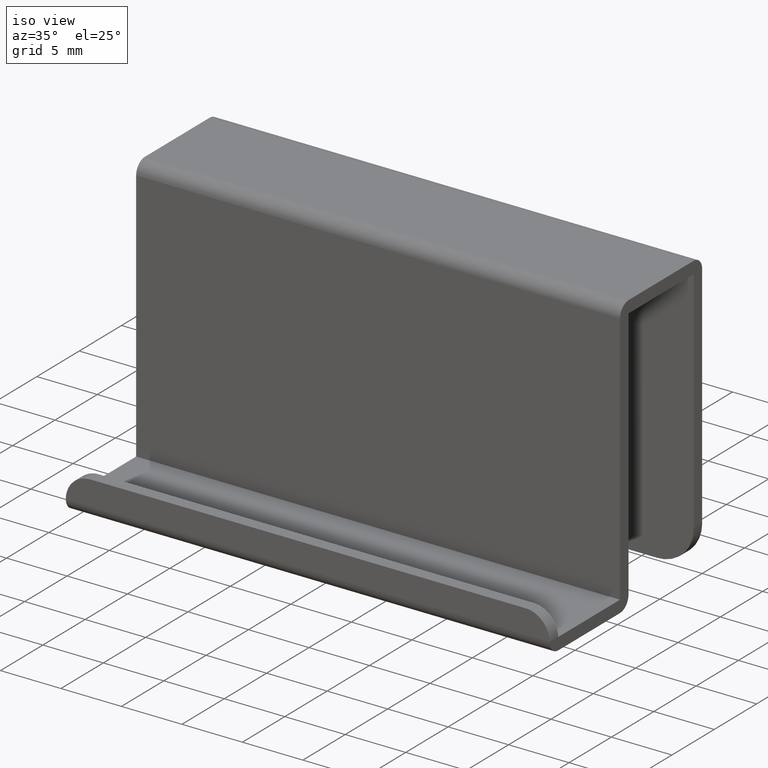
[diagram: clean part render]
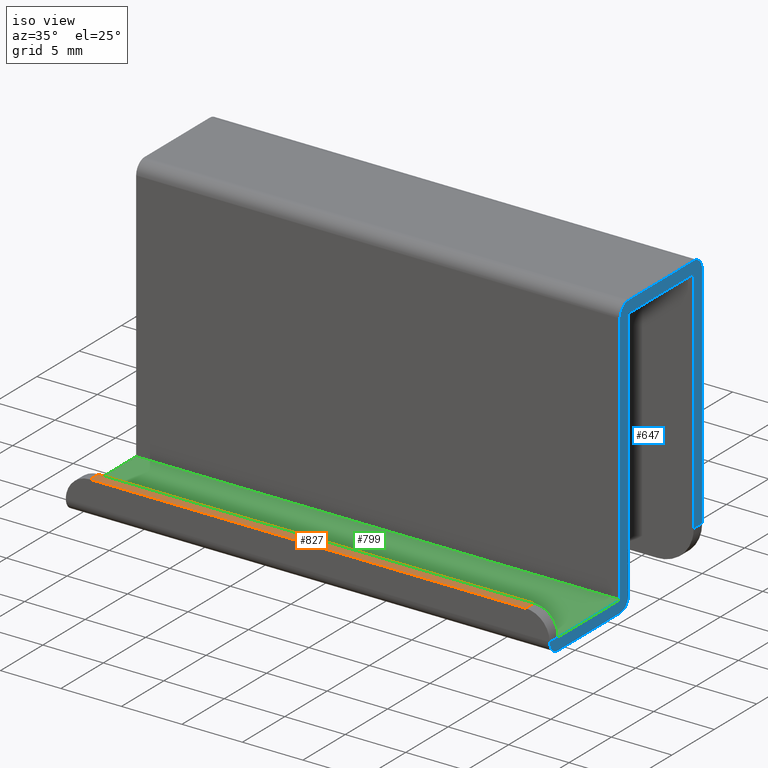
[diagram: same view with three faces highlighted in distinct colors, each labeled with its STEP entity id]
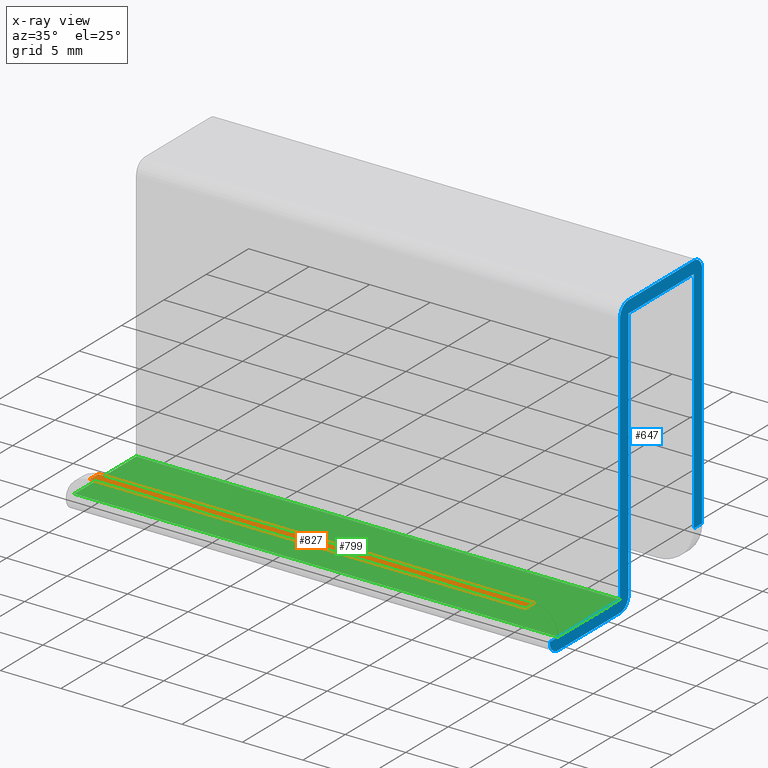
[diagram: x-ray of the same camera — body ghosted, the three highlighted faces saturated]
A machine part, iso view with three faces highlighted in distinct colors.
The next image is the same camera in x-ray (body ghosted, the three faces saturated) — at least one of them is partly hidden behind the body in this view.
Their STEP definitions:

[orange] entity #827 — the highlighted face is a freeform B-spline surface patch.
#60=CARTESIAN_POINT('',(18.0,-17.999999999999751,3.0));
#61=VERTEX_POINT('',#60);
#82=CARTESIAN_POINT('',(18.0,-16.999999999999751,3.0));
#83=VERTEX_POINT('',#82);
#97=CARTESIAN_POINT('',(18.0,-17.999999999999751,3.0));
#98=CARTESIAN_POINT('',(18.0,-16.999999999999751,3.0));
#99=QUASI_UNIFORM_CURVE('',1,(#97,#98),.UNSPECIFIED.,.F.,.U.);
#100=EDGE_CURVE('',#61,#83,#99,.T.);
#119=CARTESIAN_POINT('',(-18.0,-17.999999999999751,3.0));
#120=VERTEX_POINT('',#119);
#136=CARTESIAN_POINT('',(-18.0,-16.999999999999751,3.0));
#137=VERTEX_POINT('',#136);
#138=CARTESIAN_POINT('',(-18.0,-16.999999999999751,3.0));
#139=CARTESIAN_POINT('',(-18.0,-17.999999999999751,3.0));
#140=QUASI_UNIFORM_CURVE('',1,(#138,#139),.UNSPECIFIED.,.F.,.U.);
#141=EDGE_CURVE('',#137,#120,#140,.T.);
#653=CARTESIAN_POINT('',(18.0,-17.999999999999751,3.0));
#654=CARTESIAN_POINT('',(-18.0,-17.999999999999751,3.0));
#655=QUASI_UNIFORM_CURVE('',1,(#653,#654),.UNSPECIFIED.,.F.,.U.);
#656=EDGE_CURVE('',#61,#120,#655,.T.);
#807=CARTESIAN_POINT('',(18.0,-16.999999999999751,3.0));
#808=CARTESIAN_POINT('',(-18.0,-16.999999999999751,3.0));
#809=QUASI_UNIFORM_CURVE('',1,(#807,#808),.UNSPECIFIED.,.F.,.U.);
#810=EDGE_CURVE('',#83,#137,#809,.T.);
#816=CARTESIAN_POINT('',(-19.798199930225010,-18.049949998061560,3.0));
#817=CARTESIAN_POINT('',(19.798200895820258,-18.049949998061560,3.0));
#818=CARTESIAN_POINT('',(-19.798199930225010,-16.950049975115849,3.0));
#819=CARTESIAN_POINT('',(19.798200895820258,-16.950049975115849,3.0));
#820=B_SPLINE_SURFACE_WITH_KNOTS('',1,1,((#816,#818),(#817,#819)),.UNSPECIFIED.,.F.,.F.,.U.,(2,2),(2,2),(0.0,39.596400826045269),(0.041708334948495,0.958291687403247),.UNSPECIFIED.);
#821=ORIENTED_EDGE('',*,*,#810,.T.);
#822=ORIENTED_EDGE('',*,*,#141,.T.);
#823=ORIENTED_EDGE('',*,*,#656,.F.);
#824=ORIENTED_EDGE('',*,*,#100,.T.);
#825=EDGE_LOOP('',(#821,#822,#823,#824));
#826=FACE_OUTER_BOUND('',#825,.T.);
#827=ADVANCED_FACE('',(#826),#820,.T.);

[blue] entity #647 — the highlighted face is a freeform B-spline surface patch.
#58=CARTESIAN_POINT('',(20.0,-17.999999999999751,1.0));
#59=VERTEX_POINT('',#58);
#75=CARTESIAN_POINT('',(20.0,-16.999999999999751,1.0));
#76=VERTEX_POINT('',#75);
#77=CARTESIAN_POINT('',(20.0,-16.999999999999751,1.0));
#78=CARTESIAN_POINT('',(20.0,-17.999999999999751,1.0));
#79=QUASI_UNIFORM_CURVE('',1,(#77,#78),.UNSPECIFIED.,.F.,.U.);
#80=EDGE_CURVE('',#76,#59,#79,.T.);
#180=CARTESIAN_POINT('',(20.0,0.0,22.0));
#181=VERTEX_POINT('',#180);
#182=CARTESIAN_POINT('',(20.0,-1.0,23.0));
#183=VERTEX_POINT('',#182);
#184=CARTESIAN_POINT('',(20.0,0.0,22.0));
#185=CARTESIAN_POINT('',(19.999999999999996,0.0,22.999999999999993));
#186=CARTESIAN_POINT('',(20.0,-1.0,23.0));
#194=(BOUNDED_CURVE()B_SPLINE_CURVE(2,(#184,#185,#186),.UNSPECIFIED.,.F.,.U.)CURVE()GEOMETRIC_REPRESENTATION_ITEM()QUASI_UNIFORM_CURVE()RATIONAL_B_SPLINE_CURVE((1.0,0.707106781186548,1.0))REPRESENTATION_ITEM(''));
#195=EDGE_CURVE('',#181,#183,#194,.T.);
#241=CARTESIAN_POINT('',(20.0,-8.700011999999788,23.0));
#242=VERTEX_POINT('',#241);
#243=CARTESIAN_POINT('',(20.0,-9.700011999999790,22.0));
#244=VERTEX_POINT('',#243);
#245=CARTESIAN_POINT('',(20.0,-8.700011999999788,23.0));
#246=CARTESIAN_POINT('',(19.999999999999996,-9.700011999999790,22.999999999999993));
#247=CARTESIAN_POINT('',(20.0,-9.700011999999790,22.0));
#255=(BOUNDED_CURVE()B_SPLINE_CURVE(2,(#245,#246,#247),.UNSPECIFIED.,.F.,.U.)CURVE()GEOMETRIC_REPRESENTATION_ITEM()QUASI_UNIFORM_CURVE()RATIONAL_B_SPLINE_CURVE((1.0,0.707106781186548,1.0))REPRESENTATION_ITEM(''));
#256=EDGE_CURVE('',#242,#244,#255,.T.);
#302=CARTESIAN_POINT('',(20.0,-16.999999999999751,0.0));
#303=VERTEX_POINT('',#302);
#304=CARTESIAN_POINT('',(20.0,-17.999999999999751,1.0));
#305=CARTESIAN_POINT('',(19.999999999999996,-17.999999999999751,0.0));
#306=CARTESIAN_POINT('',(20.0,-16.999999999999751,0.0));
#314=(BOUNDED_CURVE()B_SPLINE_CURVE(2,(#304,#305,#306),.UNSPECIFIED.,.F.,.U.)CURVE()GEOMETRIC_REPRESENTATION_ITEM()QUASI_UNIFORM_CURVE()RATIONAL_B_SPLINE_CURVE((1.0,0.707106781186548,1.0))REPRESENTATION_ITEM(''));
#315=EDGE_CURVE('',#59,#303,#314,.T.);
#359=CARTESIAN_POINT('',(20.0,-9.700011999999999,0.0));
#360=VERTEX_POINT('',#359);
#361=CARTESIAN_POINT('',(20.0,-8.700011999999999,1.0));
#362=VERTEX_POINT('',#361);
#363=CARTESIAN_POINT('',(20.0,-9.700011999999999,0.0));
#364=CARTESIAN_POINT('',(19.999999999999996,-8.700011999999999,0.0));
#365=CARTESIAN_POINT('',(20.0,-8.700011999999999,1.0));
#373=(BOUNDED_CURVE()B_SPLINE_CURVE(2,(#363,#364,#365),.UNSPECIFIED.,.F.,.U.)CURVE()GEOMETRIC_REPRESENTATION_ITEM()QUASI_UNIFORM_CURVE()RATIONAL_B_SPLINE_CURVE((1.0,0.707106781186548,1.0))REPRESENTATION_ITEM(''));
#374=EDGE_CURVE('',#360,#362,#373,.T.);
#420=CARTESIAN_POINT('',(20.0,0.0,3.0));
#421=VERTEX_POINT('',#420);
#437=CARTESIAN_POINT('',(20.0,-1.0,3.0));
#438=VERTEX_POINT('',#437);
#439=CARTESIAN_POINT('',(20.0,-1.0,3.0));
#440=CARTESIAN_POINT('',(20.0,0.0,3.0));
#441=QUASI_UNIFORM_CURVE('',1,(#439,#440),.UNSPECIFIED.,.F.,.U.);
#442=EDGE_CURVE('',#438,#421,#441,.T.);
#588=CARTESIAN_POINT('',(20.0,-18.899099965112249,24.148849955421539));
#589=CARTESIAN_POINT('',(20.0,0.899100447910116,24.148849955421539));
#590=CARTESIAN_POINT('',(20.0,-18.899099965112249,-1.148850572329609));
#591=CARTESIAN_POINT('',(20.0,0.899100447910116,-1.148850572329609));
#592=B_SPLINE_SURFACE_WITH_KNOTS('',1,1,((#588,#590),(#589,#591)),.UNSPECIFIED.,.F.,.F.,.U.,(2,2),(2,2),(0.0,19.798200413022361),(0.0,25.297700527751150),.UNSPECIFIED.);
#593=CARTESIAN_POINT('',(20.0,-9.700011999999790,1.0));
#594=VERTEX_POINT('',#593);
#595=CARTESIAN_POINT('',(20.0,-16.999999999999751,1.0));
#596=CARTESIAN_POINT('',(20.0,-9.700011999999790,1.0));
#597=QUASI_UNIFORM_CURVE('',1,(#595,#596),.UNSPECIFIED.,.F.,.U.);
#598=EDGE_CURVE('',#76,#594,#597,.T.);
#599=ORIENTED_EDGE('',*,*,#598,.F.);
#600=ORIENTED_EDGE('',*,*,#80,.T.);
#601=ORIENTED_EDGE('',*,*,#315,.T.);
#602=CARTESIAN_POINT('',(20.0,-9.700011999999999,0.0));
#603=CARTESIAN_POINT('',(20.0,-16.999999999999751,0.0));
#604=QUASI_UNIFORM_CURVE('',1,(#602,#603),.UNSPECIFIED.,.F.,.U.);
#605=EDGE_CURVE('',#360,#303,#604,.T.);
#606=ORIENTED_EDGE('',*,*,#605,.F.);
#607=ORIENTED_EDGE('',*,*,#374,.T.);
#608=CARTESIAN_POINT('',(20.0,-8.700011999999999,22.0));
#609=VERTEX_POINT('',#608);
#610=CARTESIAN_POINT('',(20.0,-8.700011999999999,22.0));
#611=CARTESIAN_POINT('',(20.0,-8.700011999999999,1.0));
#612=QUASI_UNIFORM_CURVE('',1,(#610,#611),.UNSPECIFIED.,.F.,.U.);
#613=EDGE_CURVE('',#609,#362,#612,.T.);
#614=ORIENTED_EDGE('',*,*,#613,.F.);
#615=CARTESIAN_POINT('',(20.0,-1.0,22.0));
#616=VERTEX_POINT('',#615);
#617=CARTESIAN_POINT('',(20.0,-1.0,22.0));
#618=CARTESIAN_POINT('',(20.0,-8.700011999999999,22.0));
#619=QUASI_UNIFORM_CURVE('',1,(#617,#618),.UNSPECIFIED.,.F.,.U.);
#620=EDGE_CURVE('',#616,#609,#619,.T.);
#621=ORIENTED_EDGE('',*,*,#620,.F.);
#622=CARTESIAN_POINT('',(20.0,-1.0,3.0));
#623=CARTESIAN_POINT('',(20.0,-1.0,22.0));
#624=QUASI_UNIFORM_CURVE('',1,(#622,#623),.UNSPECIFIED.,.F.,.U.);
#625=EDGE_CURVE('',#438,#616,#624,.T.);
#626=ORIENTED_EDGE('',*,*,#625,.F.);
#627=ORIENTED_EDGE('',*,*,#442,.T.);
#628=CARTESIAN_POINT('',(20.0,0.0,22.0));
#629=CARTESIAN_POINT('',(20.0,0.0,3.0));
#630=QUASI_UNIFORM_CURVE('',1,(#628,#629),.UNSPECIFIED.,.F.,.U.);
#631=EDGE_CURVE('',#181,#421,#630,.T.);
#632=ORIENTED_EDGE('',*,*,#631,.F.);
#633=ORIENTED_EDGE('',*,*,#195,.T.);
#634=CARTESIAN_POINT('',(20.0,-8.700011999999788,23.0));
#635=CARTESIAN_POINT('',(20.0,-1.0,23.0));
#636=QUASI_UNIFORM_CURVE('',1,(#634,#635),.UNSPECIFIED.,.F.,.U.);
#637=EDGE_CURVE('',#242,#183,#636,.T.);
#638=ORIENTED_EDGE('',*,*,#637,.F.);
#639=ORIENTED_EDGE('',*,*,#256,.T.);
#640=CARTESIAN_POINT('',(20.0,-9.700011999999790,1.0));
#641=CARTESIAN_POINT('',(20.0,-9.700011999999790,22.0));
#642=QUASI_UNIFORM_CURVE('',1,(#640,#641),.UNSPECIFIED.,.F.,.U.);
#643=EDGE_CURVE('',#594,#244,#642,.T.);
#644=ORIENTED_EDGE('',*,*,#643,.F.);
#645=EDGE_LOOP('',(#599,#600,#601,#606,#607,#614,#621,#626,#627,#632,#633,#638,#639,#644));
#646=FACE_OUTER_BOUND('',#645,.T.);
#647=ADVANCED_FACE('',(#646),#592,.F.);

[green] entity #799 — the highlighted face is a freeform B-spline surface patch.
#75=CARTESIAN_POINT('',(20.0,-16.999999999999751,1.0));
#76=VERTEX_POINT('',#75);
#143=CARTESIAN_POINT('',(-20.0,-16.999999999999751,1.0));
#144=VERTEX_POINT('',#143);
#535=CARTESIAN_POINT('',(-20.0,-9.700011999999790,1.0));
#536=VERTEX_POINT('',#535);
#537=CARTESIAN_POINT('',(-20.0,-16.999999999999751,1.0));
#538=CARTESIAN_POINT('',(-20.0,-9.700011999999790,1.0));
#539=QUASI_UNIFORM_CURVE('',1,(#537,#538),.UNSPECIFIED.,.F.,.U.);
#540=EDGE_CURVE('',#144,#536,#539,.T.);
#593=CARTESIAN_POINT('',(20.0,-9.700011999999790,1.0));
#594=VERTEX_POINT('',#593);
#595=CARTESIAN_POINT('',(20.0,-16.999999999999751,1.0));
#596=CARTESIAN_POINT('',(20.0,-9.700011999999790,1.0));
#597=QUASI_UNIFORM_CURVE('',1,(#595,#596),.UNSPECIFIED.,.F.,.U.);
#598=EDGE_CURVE('',#76,#594,#597,.T.);
#776=CARTESIAN_POINT('',(20.0,-9.700011999999790,1.0));
#777=CARTESIAN_POINT('',(-20.0,-9.700011999999790,1.0));
#778=QUASI_UNIFORM_CURVE('',1,(#776,#777),.UNSPECIFIED.,.F.,.U.);
#779=EDGE_CURVE('',#594,#536,#778,.T.);
#784=CARTESIAN_POINT('',(-21.997999922472239,-17.364634360370282,1.0));
#785=CARTESIAN_POINT('',(21.998000995355849,-17.364634360370282,1.0));
#786=CARTESIAN_POINT('',(-21.997999922472239,-9.335377965964161,1.0));
#787=CARTESIAN_POINT('',(21.998000995355849,-9.335377965964161,1.0));
#788=B_SPLINE_SURFACE_WITH_KNOTS('',1,1,((#784,#786),(#785,#787)),.UNSPECIFIED.,.F.,.F.,.U.,(2,2),(2,2),(0.0,43.996000917828077),(0.0,8.029256394406113),.UNSPECIFIED.);
#789=ORIENTED_EDGE('',*,*,#540,.F.);
#790=CARTESIAN_POINT('',(20.0,-16.999999999999751,1.0));
#791=CARTESIAN_POINT('',(-20.0,-16.999999999999751,1.0));
#792=QUASI_UNIFORM_CURVE('',1,(#790,#791),.UNSPECIFIED.,.F.,.U.);
#793=EDGE_CURVE('',#76,#144,#792,.T.);
#794=ORIENTED_EDGE('',*,*,#793,.F.);
#795=ORIENTED_EDGE('',*,*,#598,.T.);
#796=ORIENTED_EDGE('',*,*,#779,.T.);
#797=EDGE_LOOP('',(#789,#794,#795,#796));
#798=FACE_OUTER_BOUND('',#797,.T.);
#799=ADVANCED_FACE('',(#798),#788,.T.);